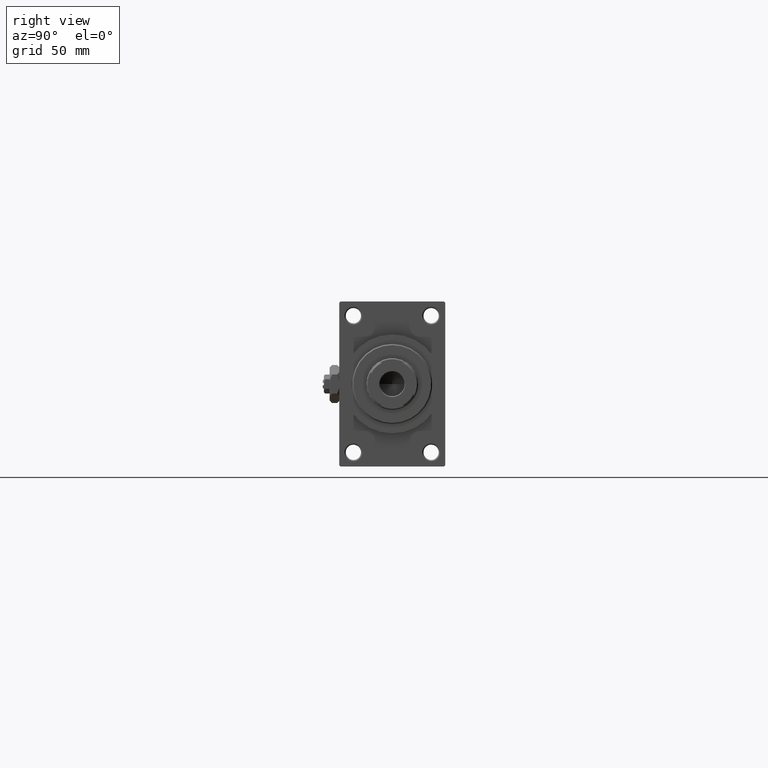
[diagram: clean part render]
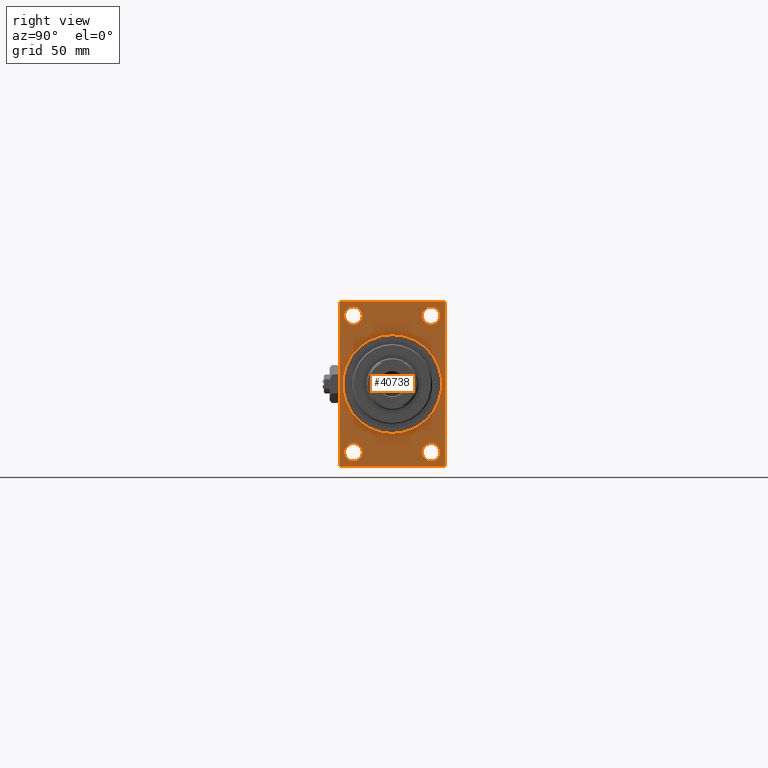
[diagram: same view with one face highlighted and labeled with its STEP entity id]
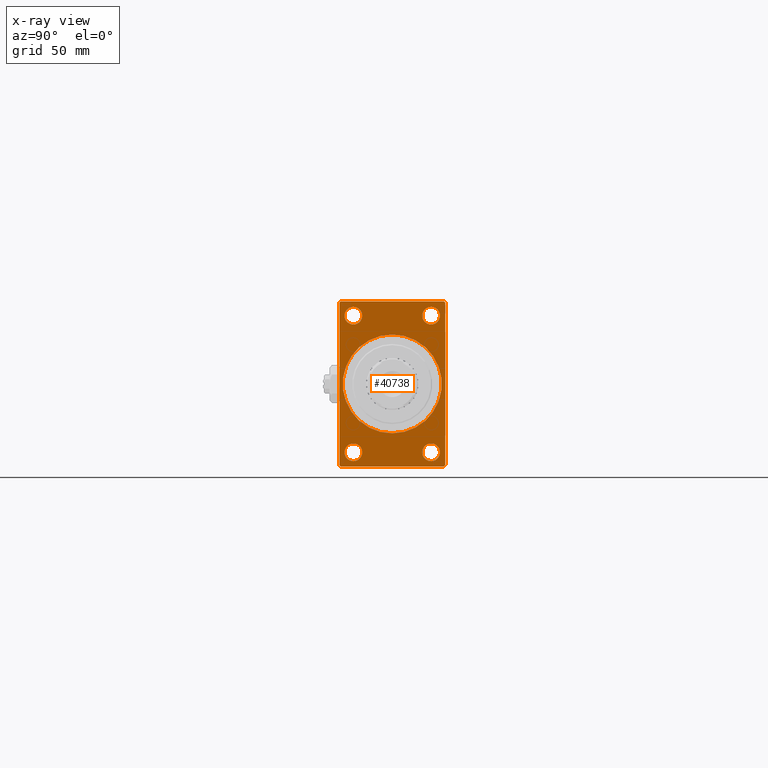
[diagram: x-ray of the same camera — body ghosted, the highlighted face saturated]
A machine part, right view. The second image highlights one B-rep face of the part: STEP entity #40738.
The next image is the same camera in x-ray: the body ghosted, the highlighted face saturated — about 0% of this face is hidden behind the body in this view.
In plain terms, the highlighted planar face has unit normal (-1, 0, 0).
Its self-contained STEP definition (entity closure, byte-faithful):
#587 = DIRECTION ( 'NONE',  ( 0.000000000000000000, 0.000000000000000000, 1.000000000000000000 ) ) ;
#1104 = CARTESIAN_POINT ( 'NONE',  ( 253.0000000000000000, -16.50000000000000000, -28.99999999999999289 ) ) ;
#1181 = LINE ( 'NONE', #16065, #35358 ) ;
#1480 = CIRCLE ( 'NONE', #37180, 3.750000000000225597 ) ;
#1964 = AXIS2_PLACEMENT_3D ( 'NONE', #38633, #27196, #16007 ) ;
#2014 = DIRECTION ( 'NONE',  ( -1.000000000000000000, 0.000000000000000000, -0.000000000000000000 ) ) ;
#2165 = EDGE_CURVE ( 'NONE', #11768, #29223, #39270, .T. ) ;
#2200 = VERTEX_POINT ( 'NONE', #24596 ) ;
#2906 = AXIS2_PLACEMENT_3D ( 'NONE', #45933, #30551, #45691 ) ;
#3323 = AXIS2_PLACEMENT_3D ( 'NONE', #18354, #17381, #36521 ) ;
#3364 = EDGE_CURVE ( 'NONE', #12709, #35634, #27159, .T. ) ;
#3503 = AXIS2_PLACEMENT_3D ( 'NONE', #23138, #46725, #20137 ) ;
#3762 = EDGE_CURVE ( 'NONE', #7348, #23027, #28965, .T. ) ;
#4463 = ORIENTED_EDGE ( 'NONE', *, *, #8798, .T. ) ;
#4572 = EDGE_CURVE ( 'NONE', #42157, #23027, #46196, .T. ) ;
#4912 = DIRECTION ( 'NONE',  ( -1.000000000000000000, -0.000000000000000000, -0.000000000000000000 ) ) ;
#5093 = EDGE_CURVE ( 'NONE', #7348, #19850, #41812, .T. ) ;
#5727 = CARTESIAN_POINT ( 'NONE',  ( 253.0000000000000000, 0.000000000000000000, 0.000000000000000000 ) ) ;
#6498 = EDGE_LOOP ( 'NONE', ( #12806, #43393 ) ) ;
#6603 = DIRECTION ( 'NONE',  ( 0.000000000000000000, -1.000000000000000000, 0.000000000000000000 ) ) ;
#7348 = VERTEX_POINT ( 'NONE', #10215 ) ;
#7780 = CARTESIAN_POINT ( 'NONE',  ( 253.0000000000000000, 22.49999999999999645, -34.50000000000000000 ) ) ;
#7985 = VERTEX_POINT ( 'NONE', #25644 ) ;
#8449 = DIRECTION ( 'NONE',  ( 0.000000000000000000, 0.7071067811865474617, -0.7071067811865474617 ) ) ;
#8456 = EDGE_CURVE ( 'NONE', #22566, #29064, #19335, .T. ) ;
#8559 = DIRECTION ( 'NONE',  ( 0.000000000000000000, 0.000000000000000000, -1.000000000000000000 ) ) ;
#8798 = EDGE_CURVE ( 'NONE', #47591, #11572, #11405, .T. ) ;
#8895 = AXIS2_PLACEMENT_3D ( 'NONE', #37584, #18686, #587 ) ;
#9324 = ORIENTED_EDGE ( 'NONE', *, *, #5093, .T. ) ;
#9394 = DIRECTION ( 'NONE',  ( -1.000000000000000000, -0.000000000000000000, -0.000000000000000000 ) ) ;
#9716 = ORIENTED_EDGE ( 'NONE', *, *, #14382, .F. ) ;
#10215 = CARTESIAN_POINT ( 'NONE',  ( 253.0000000000000000, 22.00000000000002132, -35.00000000000000000 ) ) ;
#11170 = CARTESIAN_POINT ( 'NONE',  ( 253.0000000000000000, 16.50000000000000000, 25.24999999999977973 ) ) ;
#11232 = EDGE_CURVE ( 'NONE', #35634, #12709, #37723, .T. ) ;
#11296 = CARTESIAN_POINT ( 'NONE',  ( 253.0000000000000000, 16.50000000000000000, 29.00000000000000355 ) ) ;
#11405 = CIRCLE ( 'NONE', #3503, 3.750000000000222045 ) ;
#11572 = VERTEX_POINT ( 'NONE', #23849 ) ;
#11600 = DIRECTION ( 'NONE',  ( 0.000000000000000000, -0.7071067811865474617, 0.7071067811865474617 ) ) ;
#11768 = VERTEX_POINT ( 'NONE', #46923 ) ;
#11846 = ORIENTED_EDGE ( 'NONE', *, *, #46416, .F. ) ;
#12709 = VERTEX_POINT ( 'NONE', #37058 ) ;
#12806 = ORIENTED_EDGE ( 'NONE', *, *, #37604, .T. ) ;
#13169 = CARTESIAN_POINT ( 'NONE',  ( 253.0000000000000000, 16.50000000000000000, 32.75000000000022737 ) ) ;
#13618 = ORIENTED_EDGE ( 'NONE', *, *, #8456, .T. ) ;
#13681 = FACE_BOUND ( 'NONE', #6498, .T. ) ;
#14382 = EDGE_CURVE ( 'NONE', #28099, #7985, #36223, .T. ) ;
#14599 = EDGE_CURVE ( 'NONE', #33662, #19850, #31170, .T. ) ;
#14783 = ORIENTED_EDGE ( 'NONE', *, *, #29898, .T. ) ;
#15263 = DIRECTION ( 'NONE',  ( 0.000000000000000000, 0.000000000000000000, 1.000000000000000000 ) ) ;
#15274 = ORIENTED_EDGE ( 'NONE', *, *, #11232, .T. ) ;
#15465 = EDGE_CURVE ( 'NONE', #29223, #2200, #1181, .T. ) ;
#15673 = CARTESIAN_POINT ( 'NONE',  ( 253.0000000000000000, 22.49999999999999645, -34.50000000000000000 ) ) ;
#16007 = DIRECTION ( 'NONE',  ( 0.000000000000000000, 0.000000000000000000, 1.000000000000000000 ) ) ;
#16065 = CARTESIAN_POINT ( 'NONE',  ( 253.0000000000000000, -22.50000000000000355, 34.50000000000000000 ) ) ;
#16435 = FACE_BOUND ( 'NONE', #35295, .T. ) ;
#16475 = DIRECTION ( 'NONE',  ( -1.000000000000000000, -0.000000000000000000, -0.000000000000000000 ) ) ;
#16837 = CARTESIAN_POINT ( 'NONE',  ( 253.0000000000000000, 16.50000000000000000, 29.00000000000000355 ) ) ;
#17160 = AXIS2_PLACEMENT_3D ( 'NONE', #1104, #16475, #45560 ) ;
#17381 = DIRECTION ( 'NONE',  ( -1.000000000000000000, -0.000000000000000000, -0.000000000000000000 ) ) ;
#17859 = EDGE_CURVE ( 'NONE', #23228, #41926, #39385, .T. ) ;
#18190 = CARTESIAN_POINT ( 'NONE',  ( 253.0000000000000000, -16.50000000000000000, -25.24999999999976907 ) ) ;
#18354 = CARTESIAN_POINT ( 'NONE',  ( 253.0000000000000000, 16.50000000000000000, -28.99999999999999289 ) ) ;
#18636 = DIRECTION ( 'NONE',  ( 1.000000000000000000, 0.000000000000000000, 0.000000000000000000 ) ) ;
#18670 = EDGE_CURVE ( 'NONE', #33662, #11768, #19276, .T. ) ;
#18686 = DIRECTION ( 'NONE',  ( -1.000000000000000000, -0.000000000000000000, -0.000000000000000000 ) ) ;
#19276 = LINE ( 'NONE', #23248, #45765 ) ;
#19305 = CARTESIAN_POINT ( 'NONE',  ( 253.0000000000000000, -16.50000000000000000, 29.00000000000000711 ) ) ;
#19335 = CIRCLE ( 'NONE', #43892, 3.750000000000225597 ) ;
#19383 = EDGE_LOOP ( 'NONE', ( #11846, #9716 ) ) ;
#19850 = VERTEX_POINT ( 'NONE', #15673 ) ;
#20023 = ORIENTED_EDGE ( 'NONE', *, *, #43054, .T. ) ;
#20137 = DIRECTION ( 'NONE',  ( 0.000000000000000000, 0.000000000000000000, 1.000000000000000000 ) ) ;
#20213 = AXIS2_PLACEMENT_3D ( 'NONE', #5727, #2014, #47450 ) ;
#20420 = CIRCLE ( 'NONE', #44205, 21.00000000000000000 ) ;
#20444 = CARTESIAN_POINT ( 'NONE',  ( 253.0000000000000000, 22.49999999999999645, 35.00000000000000000 ) ) ;
#20948 = ORIENTED_EDGE ( 'NONE', *, *, #15465, .T. ) ;
#21111 = FACE_BOUND ( 'NONE', #19383, .T. ) ;
#21306 = CARTESIAN_POINT ( 'NONE',  ( 253.0000000000000000, -16.50000000000000000, -32.75000000000022027 ) ) ;
#21326 = LINE ( 'NONE', #25319, #35420 ) ;
#22498 = CARTESIAN_POINT ( 'NONE',  ( 253.0000000000000000, -22.50000000000000355, -34.50000000000000000 ) ) ;
#22566 = VERTEX_POINT ( 'NONE', #11170 ) ;
#22922 = ORIENTED_EDGE ( 'NONE', *, *, #14599, .F. ) ;
#22926 = DIRECTION ( 'NONE',  ( -0.000000000000000000, 0.7071067811865279218, 0.7071067811865671127 ) ) ;
#22957 = DIRECTION ( 'NONE',  ( -1.000000000000000000, -0.000000000000000000, -0.000000000000000000 ) ) ;
#23027 = VERTEX_POINT ( 'NONE', #45575 ) ;
#23138 = CARTESIAN_POINT ( 'NONE',  ( 253.0000000000000000, 16.50000000000000000, -28.99999999999999289 ) ) ;
#23228 = VERTEX_POINT ( 'NONE', #18190 ) ;
#23248 = CARTESIAN_POINT ( 'NONE',  ( 253.0000000000000000, 21.99999999999999645, 35.00000000000000000 ) ) ;
#23330 = ORIENTED_EDGE ( 'NONE', *, *, #3762, .F. ) ;
#23474 = EDGE_LOOP ( 'NONE', ( #20023, #23965, #23330, #9324, #22922, #46817, #40954, #20948 ) ) ;
#23564 = ORIENTED_EDGE ( 'NONE', *, *, #48513, .T. ) ;
#23849 = CARTESIAN_POINT ( 'NONE',  ( 253.0000000000000000, 16.50000000000000000, -32.75000000000022027 ) ) ;
#23965 = ORIENTED_EDGE ( 'NONE', *, *, #4572, .T. ) ;
#24596 = CARTESIAN_POINT ( 'NONE',  ( 253.0000000000000000, -22.50000000000000355, 34.50000000000000000 ) ) ;
#24830 = CARTESIAN_POINT ( 'NONE',  ( 253.0000000000000000, -22.00000000000001776, 35.00000000000000000 ) ) ;
#25319 = CARTESIAN_POINT ( 'NONE',  ( 253.0000000000000000, -22.50000000000000355, 35.00000000000000000 ) ) ;
#25644 = CARTESIAN_POINT ( 'NONE',  ( 253.0000000000000000, 0.000000000000000000, 21.00000000000000000 ) ) ;
#25733 = CARTESIAN_POINT ( 'NONE',  ( 253.0000000000000000, 22.49999999999999645, -35.00000000000000000 ) ) ;
#26166 = CARTESIAN_POINT ( 'NONE',  ( 253.0000000000000000, 22.49999999999999645, 34.50000000000000000 ) ) ;
#26381 = VECTOR ( 'NONE', #22926, 1000.000000000000000 ) ;
#26702 = VECTOR ( 'NONE', #8559, 1000.000000000000000 ) ;
#27159 = CIRCLE ( 'NONE', #8895, 3.750000000000222045 ) ;
#27196 = DIRECTION ( 'NONE',  ( -1.000000000000000000, -0.000000000000000000, -0.000000000000000000 ) ) ;
#27361 = DIRECTION ( 'NONE',  ( 0.000000000000000000, -1.000000000000000000, 0.000000000000000000 ) ) ;
#28099 = VERTEX_POINT ( 'NONE', #37676 ) ;
#28106 = FACE_BOUND ( 'NONE', #35460, .T. ) ;
#28965 = LINE ( 'NONE', #25733, #45372 ) ;
#29064 = VERTEX_POINT ( 'NONE', #13169 ) ;
#29223 = VERTEX_POINT ( 'NONE', #24830 ) ;
#29898 = EDGE_CURVE ( 'NONE', #11572, #47591, #31101, .T. ) ;
#30082 = DIRECTION ( 'NONE',  ( 0.000000000000000000, 0.000000000000000000, -1.000000000000000000 ) ) ;
#30551 = DIRECTION ( 'NONE',  ( 1.000000000000000000, 0.000000000000000000, 0.000000000000000000 ) ) ;
#31101 = CIRCLE ( 'NONE', #3323, 3.750000000000222045 ) ;
#31170 = LINE ( 'NONE', #20444, #26702 ) ;
#31234 = DIRECTION ( 'NONE',  ( -0.000000000000000000, -0.7071067811865279218, -0.7071067811865671127 ) ) ;
#31608 = FACE_BOUND ( 'NONE', #33286, .T. ) ;
#32076 = PLANE ( 'NONE',  #20213 ) ;
#32261 = DIRECTION ( 'NONE',  ( 0.000000000000000000, 0.000000000000000000, 1.000000000000000000 ) ) ;
#32618 = VECTOR ( 'NONE', #27361, 1000.000000000000000 ) ;
#33286 = EDGE_LOOP ( 'NONE', ( #13618, #23564 ) ) ;
#33662 = VERTEX_POINT ( 'NONE', #26166 ) ;
#35295 = EDGE_LOOP ( 'NONE', ( #15274, #44963 ) ) ;
#35358 = VECTOR ( 'NONE', #31234, 1000.000000000000000 ) ;
#35420 = VECTOR ( 'NONE', #47419, 1000.000000000000000 ) ;
#35460 = EDGE_LOOP ( 'NONE', ( #14783, #4463 ) ) ;
#35634 = VERTEX_POINT ( 'NONE', #46704 ) ;
#35747 = CARTESIAN_POINT ( 'NONE',  ( 253.0000000000000000, -22.00000000000000355, -35.00000000000000000 ) ) ;
#36223 = CIRCLE ( 'NONE', #2906, 21.00000000000000000 ) ;
#36521 = DIRECTION ( 'NONE',  ( 0.000000000000000000, 0.000000000000000000, 1.000000000000000000 ) ) ;
#37058 = CARTESIAN_POINT ( 'NONE',  ( 253.0000000000000000, -16.50000000000000000, 32.75000000000022737 ) ) ;
#37180 = AXIS2_PLACEMENT_3D ( 'NONE', #16837, #9394, #32261 ) ;
#37584 = CARTESIAN_POINT ( 'NONE',  ( 253.0000000000000000, -16.50000000000000000, 29.00000000000000711 ) ) ;
#37604 = EDGE_CURVE ( 'NONE', #41926, #23228, #45618, .T. ) ;
#37676 = CARTESIAN_POINT ( 'NONE',  ( 253.0000000000000000, 2.571758278209441661E-15, -21.00000000000000000 ) ) ;
#37723 = CIRCLE ( 'NONE', #47199, 3.750000000000222045 ) ;
#38633 = CARTESIAN_POINT ( 'NONE',  ( 253.0000000000000000, -16.50000000000000000, -28.99999999999999289 ) ) ;
#39073 = VECTOR ( 'NONE', #8449, 1000.000000000000114 ) ;
#39270 = LINE ( 'NONE', #42756, #32618 ) ;
#39385 = CIRCLE ( 'NONE', #17160, 3.750000000000222045 ) ;
#39532 = FACE_OUTER_BOUND ( 'NONE', #23474, .T. ) ;
#40271 = CARTESIAN_POINT ( 'NONE',  ( 253.0000000000000000, 0.000000000000000000, 0.000000000000000000 ) ) ;
#40738 = ADVANCED_FACE ( 'NONE', ( #16435, #13681, #28106, #31608, #21111, #39532 ), #32076, .F. ) ;
#40954 = ORIENTED_EDGE ( 'NONE', *, *, #2165, .T. ) ;
#41812 = LINE ( 'NONE', #7780, #26381 ) ;
#41926 = VERTEX_POINT ( 'NONE', #21306 ) ;
#42157 = VERTEX_POINT ( 'NONE', #22498 ) ;
#42756 = CARTESIAN_POINT ( 'NONE',  ( 253.0000000000000000, 22.49999999999999645, 35.00000000000000000 ) ) ;
#43054 = EDGE_CURVE ( 'NONE', #2200, #42157, #21326, .T. ) ;
#43393 = ORIENTED_EDGE ( 'NONE', *, *, #17859, .T. ) ;
#43892 = AXIS2_PLACEMENT_3D ( 'NONE', #11296, #22957, #15263 ) ;
#44205 = AXIS2_PLACEMENT_3D ( 'NONE', #40271, #18636, #30082 ) ;
#44963 = ORIENTED_EDGE ( 'NONE', *, *, #3364, .T. ) ;
#45372 = VECTOR ( 'NONE', #6603, 1000.000000000000000 ) ;
#45560 = DIRECTION ( 'NONE',  ( 0.000000000000000000, 0.000000000000000000, 1.000000000000000000 ) ) ;
#45575 = CARTESIAN_POINT ( 'NONE',  ( 253.0000000000000000, -21.99999999999998934, -35.00000000000000000 ) ) ;
#45618 = CIRCLE ( 'NONE', #1964, 3.750000000000222045 ) ;
#45691 = DIRECTION ( 'NONE',  ( 0.000000000000000000, 0.000000000000000000, -1.000000000000000000 ) ) ;
#45765 = VECTOR ( 'NONE', #11600, 1000.000000000000114 ) ;
#45933 = CARTESIAN_POINT ( 'NONE',  ( 253.0000000000000000, 0.000000000000000000, 0.000000000000000000 ) ) ;
#46133 = DIRECTION ( 'NONE',  ( 0.000000000000000000, 0.000000000000000000, 1.000000000000000000 ) ) ;
#46196 = LINE ( 'NONE', #35747, #39073 ) ;
#46416 = EDGE_CURVE ( 'NONE', #7985, #28099, #20420, .T. ) ;
#46704 = CARTESIAN_POINT ( 'NONE',  ( 253.0000000000000000, -16.50000000000000000, 25.24999999999978684 ) ) ;
#46725 = DIRECTION ( 'NONE',  ( -1.000000000000000000, -0.000000000000000000, -0.000000000000000000 ) ) ;
#46817 = ORIENTED_EDGE ( 'NONE', *, *, #18670, .T. ) ;
#46923 = CARTESIAN_POINT ( 'NONE',  ( 253.0000000000000000, 21.99999999999999645, 35.00000000000000000 ) ) ;
#47088 = CARTESIAN_POINT ( 'NONE',  ( 253.0000000000000000, 16.50000000000000000, -25.24999999999976907 ) ) ;
#47199 = AXIS2_PLACEMENT_3D ( 'NONE', #19305, #4912, #46133 ) ;
#47419 = DIRECTION ( 'NONE',  ( 0.000000000000000000, 0.000000000000000000, -1.000000000000000000 ) ) ;
#47450 = DIRECTION ( 'NONE',  ( -0.000000000000000000, 0.000000000000000000, 1.000000000000000000 ) ) ;
#47591 = VERTEX_POINT ( 'NONE', #47088 ) ;
#48513 = EDGE_CURVE ( 'NONE', #29064, #22566, #1480, .T. ) ;